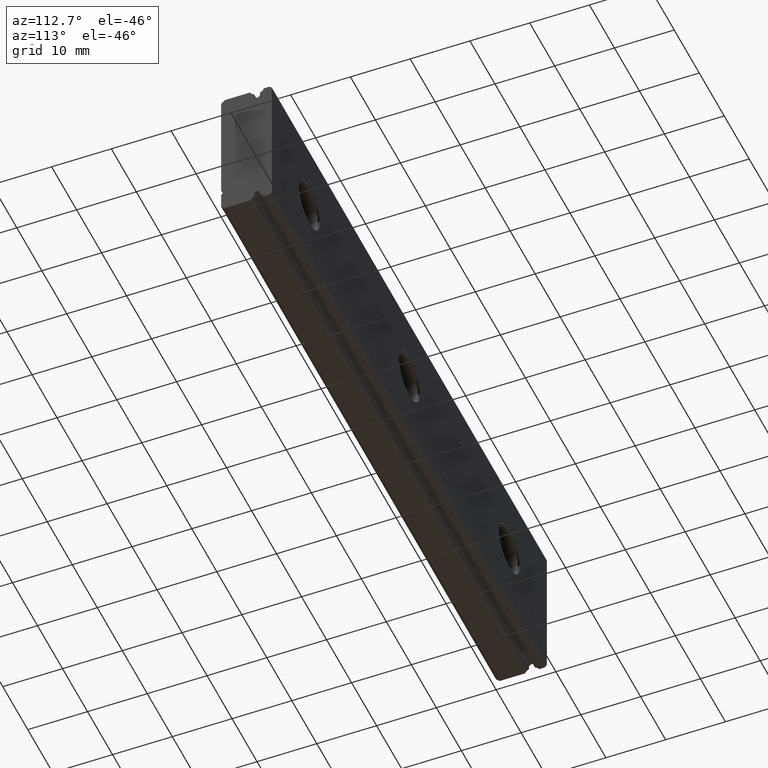
[diagram: clean part render]
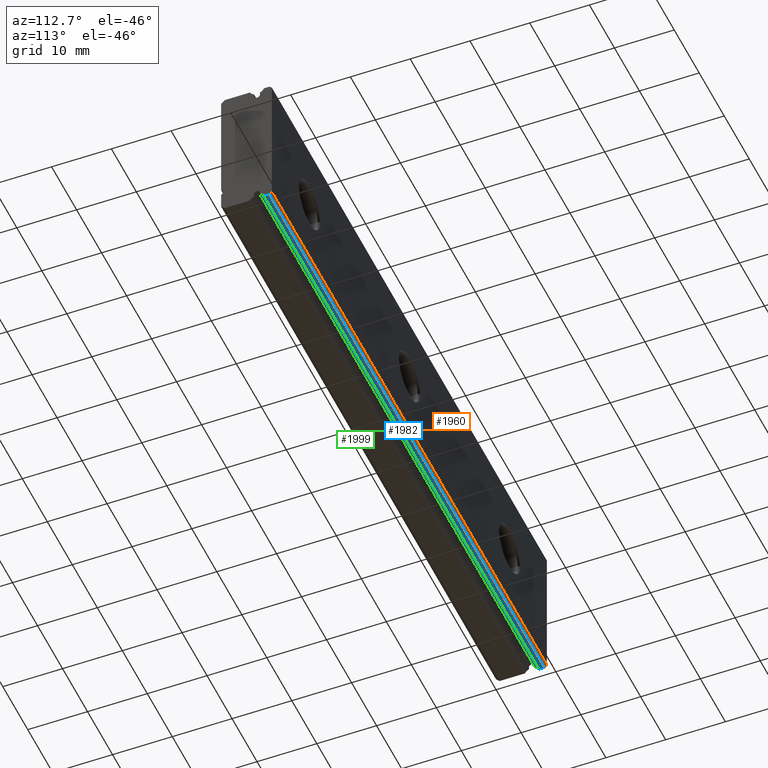
[diagram: same view with three faces highlighted in distinct colors, each labeled with its STEP entity id]
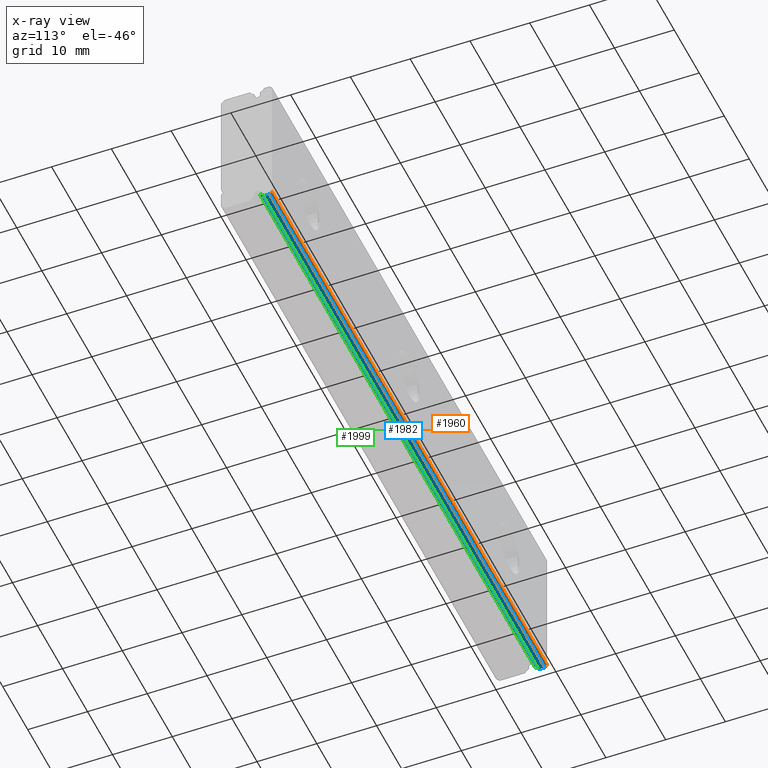
[diagram: x-ray of the same camera — body ghosted, the three highlighted faces saturated]
A machine part, auxiliary view with three faces highlighted in distinct colors.
The next image is the same camera in x-ray (body ghosted, the three faces saturated) — at least one of them is partly hidden behind the body in this view.
Their STEP definitions:

[orange] entity #1960 — the highlighted planar face has unit normal (0, -0.7071, 0.7071).
#175 = EDGE_CURVE ( 'NONE', #177, #176, #791, .T. ) ;
#176 = VERTEX_POINT ( 'NONE', #787 ) ;
#177 = VERTEX_POINT ( 'NONE', #786 ) ;
#215 = EDGE_CURVE ( 'NONE', #177, #217, #849, .T. ) ;
#217 = VERTEX_POINT ( 'NONE', #845 ) ;
#308 = VERTEX_POINT ( 'NONE', #1057 ) ;
#314 = EDGE_CURVE ( 'NONE', #176, #308, #1047, .T. ) ;
#786 = CARTESIAN_POINT ( 'NONE',  ( -110.0000000000000000, 8.499999999999996400, -11.60000000000000100 ) ) ;
#787 = CARTESIAN_POINT ( 'NONE',  ( 0.0000000000000000000, 8.499999999999996400, -11.60000000000000100 ) ) ;
#788 = DIRECTION ( 'NONE',  ( 1.000000000000000000, 0.0000000000000000000, 0.0000000000000000000 ) ) ;
#789 = VECTOR ( 'NONE', #788, 1000.000000000000000 ) ;
#790 = CARTESIAN_POINT ( 'NONE',  ( -110.0000000000000000, 8.499999999999996400, -11.60000000000000100 ) ) ;
#791 = LINE ( 'NONE', #790, #789 ) ;
#845 = CARTESIAN_POINT ( 'NONE',  ( -110.0000000000000000, 8.099999999999992500, -12.00000000000000000 ) ) ;
#846 = DIRECTION ( 'NONE',  ( 0.0000000000000000000, -0.7071067811865521200, -0.7071067811865430200 ) ) ;
#847 = VECTOR ( 'NONE', #846, 999.9999999999998900 ) ;
#848 = CARTESIAN_POINT ( 'NONE',  ( -110.0000000000000000, 8.499999999999996400, -11.60000000000000100 ) ) ;
#849 = LINE ( 'NONE', #848, #847 ) ;
#1044 = DIRECTION ( 'NONE',  ( 0.0000000000000000000, -0.7071067811865521200, -0.7071067811865430200 ) ) ;
#1045 = VECTOR ( 'NONE', #1044, 999.9999999999998900 ) ;
#1046 = CARTESIAN_POINT ( 'NONE',  ( 0.0000000000000000000, 8.499999999999996400, -11.60000000000000100 ) ) ;
#1047 = LINE ( 'NONE', #1046, #1045 ) ;
#1057 = CARTESIAN_POINT ( 'NONE',  ( 0.0000000000000000000, 8.099999999999992500, -12.00000000000000000 ) ) ;
#1573 = DIRECTION ( 'NONE',  ( 0.0000000000000000000, -0.7071067811865521200, -0.7071067811865430200 ) ) ;
#1574 = DIRECTION ( 'NONE',  ( 0.0000000000000000000, -0.7071067811865430200, 0.7071067811865521200 ) ) ;
#1575 = CARTESIAN_POINT ( 'NONE',  ( -110.0000000000000000, 8.499999999999996400, -11.60000000000000100 ) ) ;
#1576 = AXIS2_PLACEMENT_3D ( 'NONE', #1575, #1574, #1573 ) ;
#1577 = PLANE ( 'NONE',  #1576 ) ;
#1578 = FACE_OUTER_BOUND ( 'NONE', #1986, .T. ) ;
#1604 = DIRECTION ( 'NONE',  ( 1.000000000000000000, 0.0000000000000000000, 0.0000000000000000000 ) ) ;
#1605 = VECTOR ( 'NONE', #1604, 1000.000000000000000 ) ;
#1606 = CARTESIAN_POINT ( 'NONE',  ( -110.0000000000000000, 8.099999999999992500, -12.00000000000000000 ) ) ;
#1611 = LINE ( 'NONE', #1606, #1605 ) ;
#1960 = ADVANCED_FACE ( 'NONE', ( #1578 ), #1577, .F. ) ;
#1979 = EDGE_CURVE ( 'NONE', #217, #308, #1611, .T. ) ;
#1980 = ORIENTED_EDGE ( 'NONE', *, *, #215, .F. ) ;
#1981 = ORIENTED_EDGE ( 'NONE', *, *, #175, .T. ) ;
#1984 = ORIENTED_EDGE ( 'NONE', *, *, #314, .T. ) ;
#1985 = ORIENTED_EDGE ( 'NONE', *, *, #1979, .F. ) ;
#1986 = EDGE_LOOP ( 'NONE', ( #1984, #1985, #1980, #1981 ) ) ;

[blue] entity #1982 — the highlighted planar face has unit normal (0, -0, 1).
#201 = EDGE_CURVE ( 'NONE', #217, #205, #811, .T. ) ;
#205 = VERTEX_POINT ( 'NONE', #865 ) ;
#217 = VERTEX_POINT ( 'NONE', #845 ) ;
#308 = VERTEX_POINT ( 'NONE', #1057 ) ;
#318 = VERTEX_POINT ( 'NONE', #1042 ) ;
#321 = EDGE_CURVE ( 'NONE', #308, #318, #1036, .T. ) ;
#809 = VECTOR ( 'NONE', #871, 1000.000000000000000 ) ;
#810 = CARTESIAN_POINT ( 'NONE',  ( -110.0000000000000000, 8.099999999999992500, -12.00000000000000000 ) ) ;
#811 = LINE ( 'NONE', #810, #809 ) ;
#845 = CARTESIAN_POINT ( 'NONE',  ( -110.0000000000000000, 8.099999999999992500, -12.00000000000000000 ) ) ;
#865 = CARTESIAN_POINT ( 'NONE',  ( -110.0000000000000000, 7.167433081593971500, -12.00000000000000200 ) ) ;
#871 = DIRECTION ( 'NONE',  ( 0.0000000000000000000, -1.000000000000000000, -1.860159782358419900E-015 ) ) ;
#1033 = DIRECTION ( 'NONE',  ( 0.0000000000000000000, -1.000000000000000000, -1.860159782358419900E-015 ) ) ;
#1034 = VECTOR ( 'NONE', #1033, 1000.000000000000000 ) ;
#1035 = CARTESIAN_POINT ( 'NONE',  ( 0.0000000000000000000, 8.099999999999992500, -12.00000000000000000 ) ) ;
#1036 = LINE ( 'NONE', #1035, #1034 ) ;
#1042 = CARTESIAN_POINT ( 'NONE',  ( 0.0000000000000000000, 7.167433081593971500, -12.00000000000000200 ) ) ;
#1057 = CARTESIAN_POINT ( 'NONE',  ( 0.0000000000000000000, 8.099999999999992500, -12.00000000000000000 ) ) ;
#1598 = DIRECTION ( 'NONE',  ( 0.0000000000000000000, -1.000000000000000000, -1.860159782358420300E-015 ) ) ;
#1599 = DIRECTION ( 'NONE',  ( 0.0000000000000000000, -1.860159782358420300E-015, 1.000000000000000000 ) ) ;
#1600 = CARTESIAN_POINT ( 'NONE',  ( -110.0000000000000000, 8.099999999999992500, -12.00000000000000000 ) ) ;
#1601 = AXIS2_PLACEMENT_3D ( 'NONE', #1600, #1599, #1598 ) ;
#1602 = PLANE ( 'NONE',  #1601 ) ;
#1603 = FACE_OUTER_BOUND ( 'NONE', #1969, .T. ) ;
#1604 = DIRECTION ( 'NONE',  ( 1.000000000000000000, 0.0000000000000000000, 0.0000000000000000000 ) ) ;
#1605 = VECTOR ( 'NONE', #1604, 1000.000000000000000 ) ;
#1606 = CARTESIAN_POINT ( 'NONE',  ( -110.0000000000000000, 8.099999999999992500, -12.00000000000000000 ) ) ;
#1611 = LINE ( 'NONE', #1606, #1605 ) ;
#1614 = DIRECTION ( 'NONE',  ( 1.000000000000000000, 0.0000000000000000000, 0.0000000000000000000 ) ) ;
#1615 = VECTOR ( 'NONE', #1614, 1000.000000000000000 ) ;
#1616 = CARTESIAN_POINT ( 'NONE',  ( -110.0000000000000000, 7.167433081593971500, -12.00000000000000200 ) ) ;
#1617 = LINE ( 'NONE', #1616, #1615 ) ;
#1969 = EDGE_LOOP ( 'NONE', ( #1972, #1974, #1978, #1997 ) ) ;
#1972 = ORIENTED_EDGE ( 'NONE', *, *, #321, .T. ) ;
#1974 = ORIENTED_EDGE ( 'NONE', *, *, #1976, .F. ) ;
#1976 = EDGE_CURVE ( 'NONE', #205, #318, #1617, .T. ) ;
#1978 = ORIENTED_EDGE ( 'NONE', *, *, #201, .F. ) ;
#1979 = EDGE_CURVE ( 'NONE', #217, #308, #1611, .T. ) ;
#1982 = ADVANCED_FACE ( 'NONE', ( #1603 ), #1602, .F. ) ;
#1997 = ORIENTED_EDGE ( 'NONE', *, *, #1979, .T. ) ;

[green] entity #1999 — the highlighted cylindrical surface (edge-blend (fillet) strip) has radius 1.27 mm, axis along (1, 0, 0).
#198 = EDGE_CURVE ( 'NONE', #205, #200, #817, .T. ) ;
#200 = VERTEX_POINT ( 'NONE', #812 ) ;
#205 = VERTEX_POINT ( 'NONE', #865 ) ;
#316 = VERTEX_POINT ( 'NONE', #1043 ) ;
#318 = VERTEX_POINT ( 'NONE', #1042 ) ;
#319 = EDGE_CURVE ( 'NONE', #318, #316, #1041, .T. ) ;
#812 = CARTESIAN_POINT ( 'NONE',  ( -110.0000000000000000, 6.499999999999997300, -11.33256691840602700 ) ) ;
#813 = DIRECTION ( 'NONE',  ( 0.0000000000000000000, 0.0000000000000000000, -1.000000000000000000 ) ) ;
#814 = DIRECTION ( 'NONE',  ( 1.000000000000000000, 0.0000000000000000000, 0.0000000000000000000 ) ) ;
#815 = CARTESIAN_POINT ( 'NONE',  ( -110.0000000000000000, 5.999999999999997300, -12.50000000000000000 ) ) ;
#816 = AXIS2_PLACEMENT_3D ( 'NONE', #815, #814, #813 ) ;
#817 = CIRCLE ( 'NONE', #816, 1.270000000000000200 ) ;
#865 = CARTESIAN_POINT ( 'NONE',  ( -110.0000000000000000, 7.167433081593971500, -12.00000000000000200 ) ) ;
#1037 = DIRECTION ( 'NONE',  ( 0.0000000000000000000, 0.0000000000000000000, -1.000000000000000000 ) ) ;
#1038 = DIRECTION ( 'NONE',  ( 1.000000000000000000, 0.0000000000000000000, 0.0000000000000000000 ) ) ;
#1039 = CARTESIAN_POINT ( 'NONE',  ( 0.0000000000000000000, 5.999999999999997300, -12.50000000000000000 ) ) ;
#1040 = AXIS2_PLACEMENT_3D ( 'NONE', #1039, #1038, #1037 ) ;
#1041 = CIRCLE ( 'NONE', #1040, 1.270000000000000200 ) ;
#1042 = CARTESIAN_POINT ( 'NONE',  ( 0.0000000000000000000, 7.167433081593971500, -12.00000000000000200 ) ) ;
#1043 = CARTESIAN_POINT ( 'NONE',  ( 0.0000000000000000000, 6.499999999999997300, -11.33256691840602700 ) ) ;
#1614 = DIRECTION ( 'NONE',  ( 1.000000000000000000, 0.0000000000000000000, 0.0000000000000000000 ) ) ;
#1615 = VECTOR ( 'NONE', #1614, 1000.000000000000000 ) ;
#1616 = CARTESIAN_POINT ( 'NONE',  ( -110.0000000000000000, 7.167433081593971500, -12.00000000000000200 ) ) ;
#1617 = LINE ( 'NONE', #1616, #1615 ) ;
#1648 = DIRECTION ( 'NONE',  ( 0.0000000000000000000, 0.0000000000000000000, -1.000000000000000000 ) ) ;
#1649 = DIRECTION ( 'NONE',  ( 1.000000000000000000, 0.0000000000000000000, 0.0000000000000000000 ) ) ;
#1650 = CARTESIAN_POINT ( 'NONE',  ( -110.0000000000000000, 5.999999999999997300, -12.50000000000000000 ) ) ;
#1651 = AXIS2_PLACEMENT_3D ( 'NONE', #1650, #1649, #1648 ) ;
#1653 = CYLINDRICAL_SURFACE ( 'NONE', #1651, 1.270000000000000200 ) ;
#1654 = FACE_OUTER_BOUND ( 'NONE', #1993, .T. ) ;
#1655 = DIRECTION ( 'NONE',  ( 1.000000000000000000, 0.0000000000000000000, 0.0000000000000000000 ) ) ;
#1656 = VECTOR ( 'NONE', #1655, 1000.000000000000000 ) ;
#1657 = CARTESIAN_POINT ( 'NONE',  ( -110.0000000000000000, 6.499999999999997300, -11.33256691840602700 ) ) ;
#1658 = LINE ( 'NONE', #1657, #1656 ) ;
#1976 = EDGE_CURVE ( 'NONE', #205, #318, #1617, .T. ) ;
#1991 = ORIENTED_EDGE ( 'NONE', *, *, #1976, .T. ) ;
#1992 = ORIENTED_EDGE ( 'NONE', *, *, #1995, .F. ) ;
#1993 = EDGE_LOOP ( 'NONE', ( #1996, #1992, #1994, #1991 ) ) ;
#1994 = ORIENTED_EDGE ( 'NONE', *, *, #198, .F. ) ;
#1995 = EDGE_CURVE ( 'NONE', #200, #316, #1658, .T. ) ;
#1996 = ORIENTED_EDGE ( 'NONE', *, *, #319, .T. ) ;
#1999 = ADVANCED_FACE ( 'NONE', ( #1654 ), #1653, .F. ) ;